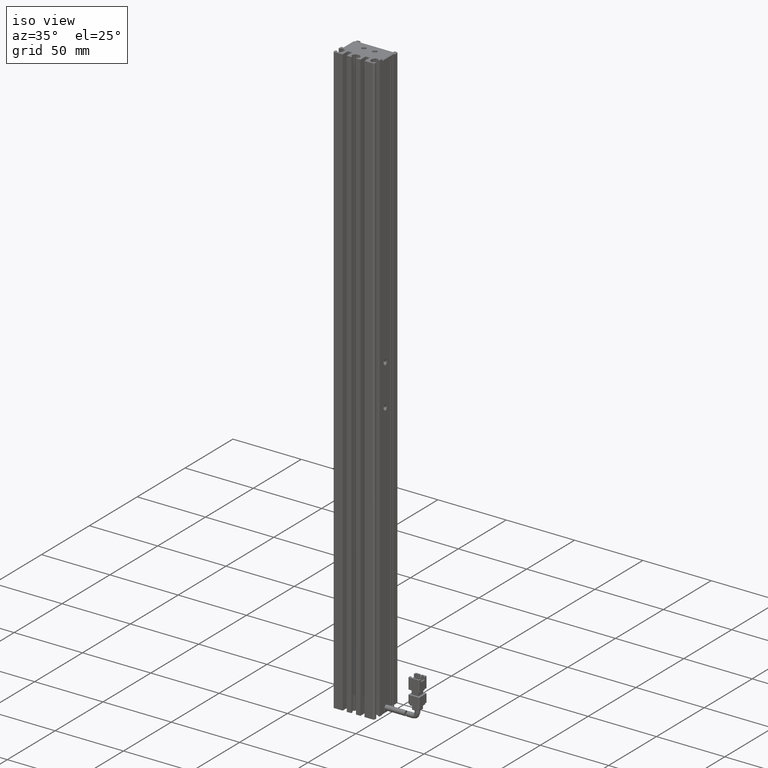
[diagram: clean part render]
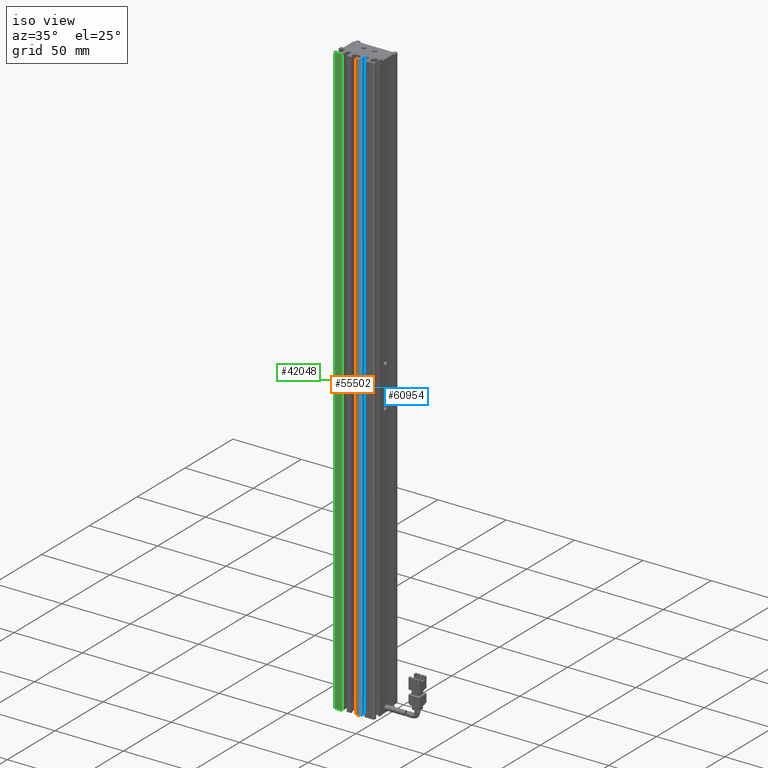
[diagram: same view with three faces highlighted in distinct colors, each labeled with its STEP entity id]
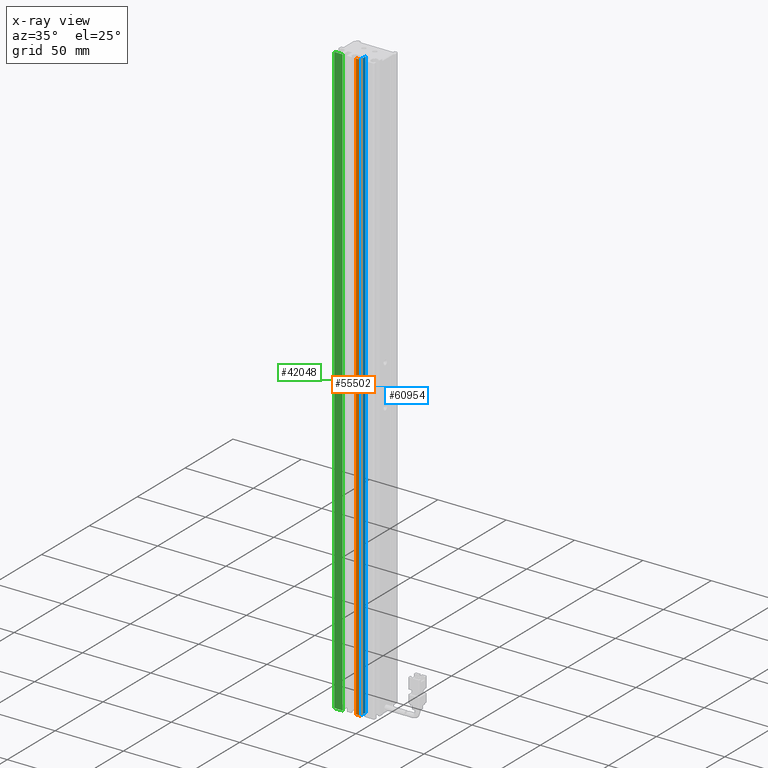
[diagram: x-ray of the same camera — body ghosted, the three highlighted faces saturated]
A machine part, iso view with three faces highlighted in distinct colors.
The next image is the same camera in x-ray (body ghosted, the three faces saturated) — at least one of them is partly hidden behind the body in this view.
Their STEP definitions:

[orange] entity #55502 — the highlighted planar face has unit normal (0, 1, 0).
#2339 = VECTOR ( 'NONE', #44096, 1000.000000000000000 ) ;
#7346 = EDGE_CURVE ( 'NONE', #8609, #74160, #70196, .T. ) ;
#7618 = EDGE_CURVE ( 'NONE', #79358, #8609, #66281, .T. ) ;
#8348 = FACE_OUTER_BOUND ( 'NONE', #15001, .T. ) ;
#8609 = VERTEX_POINT ( 'NONE', #57653 ) ;
#12060 = ORIENTED_EDGE ( 'NONE', *, *, #7618, .T. ) ;
#15001 = EDGE_LOOP ( 'NONE', ( #41420, #79061, #24827, #12060 ) ) ;
#15429 = VECTOR ( 'NONE', #45337, 1000.000000000000000 ) ;
#21301 = VECTOR ( 'NONE', #59780, 1000.000000000000000 ) ;
#23430 = CARTESIAN_POINT ( 'NONE',  ( 40.92537974683542500, 10.69594479660386800, 102.0000000000000000 ) ) ;
#24827 = ORIENTED_EDGE ( 'NONE', *, *, #52399, .F. ) ;
#27993 = CARTESIAN_POINT ( 'NONE',  ( 42.67537974683542500, 10.69594479660386800, 102.0000000000000000 ) ) ;
#29655 = DIRECTION ( 'NONE',  ( 0.0000000000000000000, -0.0000000000000000000, 1.000000000000000000 ) ) ;
#41420 = ORIENTED_EDGE ( 'NONE', *, *, #7346, .T. ) ;
#42607 = EDGE_CURVE ( 'NONE', #47726, #74160, #51841, .T. ) ;
#44096 = DIRECTION ( 'NONE',  ( 0.0000000000000000000, -0.0000000000000000000, 1.000000000000000000 ) ) ;
#45337 = DIRECTION ( 'NONE',  ( 1.000000000000000000, 0.0000000000000000000, 0.0000000000000000000 ) ) ;
#45889 = CARTESIAN_POINT ( 'NONE',  ( 45.92537974683541800, 10.69594479660386800, 102.0000000000000000 ) ) ;
#46122 = CARTESIAN_POINT ( 'NONE',  ( 42.67537974683542500, 10.69594479660386800, -332.0000000000000000 ) ) ;
#47726 = VERTEX_POINT ( 'NONE', #27993 ) ;
#51439 = LINE ( 'NONE', #68417, #2339 ) ;
#51841 = LINE ( 'NONE', #56509, #68146 ) ;
#52399 = EDGE_CURVE ( 'NONE', #79358, #47726, #51439, .T. ) ;
#52885 = AXIS2_PLACEMENT_3D ( 'NONE', #23430, #66288, #29655 ) ;
#55502 = ADVANCED_FACE ( 'NONE', ( #8348 ), #72202, .F. ) ;
#56509 = CARTESIAN_POINT ( 'NONE',  ( 40.92537974683542500, 10.69594479660386800, 102.0000000000000000 ) ) ;
#57653 = CARTESIAN_POINT ( 'NONE',  ( 45.92537974683541800, 10.69594479660386800, -332.0000000000000000 ) ) ;
#59780 = DIRECTION ( 'NONE',  ( 0.0000000000000000000, 0.0000000000000000000, 1.000000000000000000 ) ) ;
#62662 = DIRECTION ( 'NONE',  ( 1.000000000000000000, 0.0000000000000000000, 0.0000000000000000000 ) ) ;
#65950 = CARTESIAN_POINT ( 'NONE',  ( 45.92537974683541800, 10.69594479660386800, 102.0000000000000000 ) ) ;
#66281 = LINE ( 'NONE', #75803, #15429 ) ;
#66288 = DIRECTION ( 'NONE',  ( 0.0000000000000000000, 1.000000000000000000, 0.0000000000000000000 ) ) ;
#68146 = VECTOR ( 'NONE', #62662, 1000.000000000000000 ) ;
#68417 = CARTESIAN_POINT ( 'NONE',  ( 42.67537974683542500, 10.69594479660386800, 102.0000000000000000 ) ) ;
#70196 = LINE ( 'NONE', #65950, #21301 ) ;
#72202 = PLANE ( 'NONE',  #52885 ) ;
#74160 = VERTEX_POINT ( 'NONE', #45889 ) ;
#75803 = CARTESIAN_POINT ( 'NONE',  ( 40.92537974683542500, 10.69594479660386800, -332.0000000000000000 ) ) ;
#79061 = ORIENTED_EDGE ( 'NONE', *, *, #42607, .F. ) ;
#79358 = VERTEX_POINT ( 'NONE', #46122 ) ;

[blue] entity #60954 — the highlighted planar face has unit normal (-1, -0, 0).
#5542 = CARTESIAN_POINT ( 'NONE',  ( 45.92537974683541800, 16.19594479660386800, -332.0000000000000000 ) ) ;
#7346 = EDGE_CURVE ( 'NONE', #8609, #74160, #70196, .T. ) ;
#8609 = VERTEX_POINT ( 'NONE', #57653 ) ;
#11059 = EDGE_CURVE ( 'NONE', #72838, #20313, #67749, .T. ) ;
#18681 = DIRECTION ( 'NONE',  ( -1.000000000000000000, -3.154042683594196600E-016, 0.0000000000000000000 ) ) ;
#19034 = ORIENTED_EDGE ( 'NONE', *, *, #11059, .F. ) ;
#20313 = VERTEX_POINT ( 'NONE', #5542 ) ;
#20345 = ORIENTED_EDGE ( 'NONE', *, *, #30634, .F. ) ;
#20387 = ORIENTED_EDGE ( 'NONE', *, *, #50400, .T. ) ;
#21301 = VECTOR ( 'NONE', #59780, 1000.000000000000000 ) ;
#22826 = CARTESIAN_POINT ( 'NONE',  ( 45.92537974683541800, 7.083797468354437600, 102.0000000000000000 ) ) ;
#23285 = CARTESIAN_POINT ( 'NONE',  ( 45.92537974683541800, 16.19594479660386800, 102.0000000000000000 ) ) ;
#28142 = CARTESIAN_POINT ( 'NONE',  ( 45.92537974683541800, 16.19594479660386800, 102.0000000000000000 ) ) ;
#30634 = EDGE_CURVE ( 'NONE', #74160, #72838, #30978, .T. ) ;
#30978 = LINE ( 'NONE', #22826, #47233 ) ;
#33880 = LINE ( 'NONE', #77948, #66380 ) ;
#34324 = DIRECTION ( 'NONE',  ( 0.0000000000000000000, -0.0000000000000000000, -1.000000000000000000 ) ) ;
#36068 = AXIS2_PLACEMENT_3D ( 'NONE', #55374, #18681, #61557 ) ;
#41358 = DIRECTION ( 'NONE',  ( 0.0000000000000000000, 1.000000000000000000, -0.0000000000000000000 ) ) ;
#45889 = CARTESIAN_POINT ( 'NONE',  ( 45.92537974683541800, 10.69594479660386800, 102.0000000000000000 ) ) ;
#47233 = VECTOR ( 'NONE', #59512, 1000.000000000000000 ) ;
#50400 = EDGE_CURVE ( 'NONE', #8609, #20313, #33880, .T. ) ;
#51448 = VECTOR ( 'NONE', #34324, 1000.000000000000000 ) ;
#55374 = CARTESIAN_POINT ( 'NONE',  ( 45.92537974683541800, 7.083797468354439400, 102.0000000000000000 ) ) ;
#57653 = CARTESIAN_POINT ( 'NONE',  ( 45.92537974683541800, 10.69594479660386800, -332.0000000000000000 ) ) ;
#59512 = DIRECTION ( 'NONE',  ( 0.0000000000000000000, 1.000000000000000000, -0.0000000000000000000 ) ) ;
#59780 = DIRECTION ( 'NONE',  ( 0.0000000000000000000, 0.0000000000000000000, 1.000000000000000000 ) ) ;
#60954 = ADVANCED_FACE ( 'NONE', ( #62516 ), #61301, .F. ) ;
#61301 = PLANE ( 'NONE',  #36068 ) ;
#61557 = DIRECTION ( 'NONE',  ( 3.154042683594196600E-016, -1.000000000000000000, 0.0000000000000000000 ) ) ;
#62016 = ORIENTED_EDGE ( 'NONE', *, *, #7346, .F. ) ;
#62516 = FACE_OUTER_BOUND ( 'NONE', #70706, .T. ) ;
#65950 = CARTESIAN_POINT ( 'NONE',  ( 45.92537974683541800, 10.69594479660386800, 102.0000000000000000 ) ) ;
#66380 = VECTOR ( 'NONE', #41358, 1000.000000000000000 ) ;
#67749 = LINE ( 'NONE', #28142, #51448 ) ;
#70196 = LINE ( 'NONE', #65950, #21301 ) ;
#70706 = EDGE_LOOP ( 'NONE', ( #19034, #20345, #62016, #20387 ) ) ;
#72838 = VERTEX_POINT ( 'NONE', #23285 ) ;
#74160 = VERTEX_POINT ( 'NONE', #45889 ) ;
#77948 = CARTESIAN_POINT ( 'NONE',  ( 45.92537974683541800, 7.083797468354437600, -332.0000000000000000 ) ) ;

[green] entity #42048 — the highlighted planar face has unit normal (0, -1, 0).
#2887 = FACE_OUTER_BOUND ( 'NONE', #12025, .T. ) ;
#3225 = LINE ( 'NONE', #55368, #34174 ) ;
#3398 = ORIENTED_EDGE ( 'NONE', *, *, #50461, .T. ) ;
#6403 = VECTOR ( 'NONE', #30355, 1000.000000000000000 ) ;
#10655 = EDGE_CURVE ( 'NONE', #40056, #59723, #61226, .T. ) ;
#11650 = EDGE_CURVE ( 'NONE', #64508, #59723, #3225, .T. ) ;
#12025 = EDGE_LOOP ( 'NONE', ( #70436, #3398, #72302, #41773 ) ) ;
#13542 = CARTESIAN_POINT ( 'NONE',  ( 32.92537974683543200, 10.69594479660386800, -332.0000000000000000 ) ) ;
#14160 = AXIS2_PLACEMENT_3D ( 'NONE', #62221, #25590, #68398 ) ;
#14413 = LINE ( 'NONE', #52247, #61440 ) ;
#16891 = CARTESIAN_POINT ( 'NONE',  ( 26.92537974683542100, 10.69594479660386800, 102.0000000000000000 ) ) ;
#17469 = LINE ( 'NONE', #16891, #48177 ) ;
#18412 = DIRECTION ( 'NONE',  ( 0.0000000000000000000, 0.0000000000000000000, 1.000000000000000000 ) ) ;
#21724 = DIRECTION ( 'NONE',  ( 1.000000000000000000, 0.0000000000000000000, 0.0000000000000000000 ) ) ;
#24150 = CARTESIAN_POINT ( 'NONE',  ( 40.92537974683542500, 10.69594479660386800, 102.0000000000000000 ) ) ;
#25590 = DIRECTION ( 'NONE',  ( 0.0000000000000000000, -1.000000000000000000, 0.0000000000000000000 ) ) ;
#30355 = DIRECTION ( 'NONE',  ( 1.000000000000000000, 0.0000000000000000000, 0.0000000000000000000 ) ) ;
#34174 = VECTOR ( 'NONE', #18412, 1000.000000000000000 ) ;
#40056 = VERTEX_POINT ( 'NONE', #43411 ) ;
#41773 = ORIENTED_EDGE ( 'NONE', *, *, #11650, .T. ) ;
#42048 = ADVANCED_FACE ( 'NONE', ( #2887 ), #61971, .T. ) ;
#43411 = CARTESIAN_POINT ( 'NONE',  ( 26.92537974683542100, 10.69594479660386800, 102.0000000000000000 ) ) ;
#46580 = EDGE_CURVE ( 'NONE', #79444, #64508, #14413, .T. ) ;
#48177 = VECTOR ( 'NONE', #59766, 1000.000000000000000 ) ;
#50461 = EDGE_CURVE ( 'NONE', #40056, #79444, #17469, .T. ) ;
#52247 = CARTESIAN_POINT ( 'NONE',  ( 40.92537974683542500, 10.69594479660386800, -332.0000000000000000 ) ) ;
#53672 = CARTESIAN_POINT ( 'NONE',  ( 32.92537974683543200, 10.69594479660386800, 102.0000000000000000 ) ) ;
#55368 = CARTESIAN_POINT ( 'NONE',  ( 32.92537974683543200, 10.69594479660386800, 102.0000000000000000 ) ) ;
#59723 = VERTEX_POINT ( 'NONE', #53672 ) ;
#59766 = DIRECTION ( 'NONE',  ( 0.0000000000000000000, -0.0000000000000000000, -1.000000000000000000 ) ) ;
#61226 = LINE ( 'NONE', #24150, #6403 ) ;
#61440 = VECTOR ( 'NONE', #21724, 1000.000000000000000 ) ;
#61971 = PLANE ( 'NONE',  #14160 ) ;
#62221 = CARTESIAN_POINT ( 'NONE',  ( 40.92537974683542500, 10.69594479660386800, 102.0000000000000000 ) ) ;
#64508 = VERTEX_POINT ( 'NONE', #13542 ) ;
#65336 = CARTESIAN_POINT ( 'NONE',  ( 26.92537974683542100, 10.69594479660386800, -332.0000000000000000 ) ) ;
#68398 = DIRECTION ( 'NONE',  ( 0.0000000000000000000, -0.0000000000000000000, -1.000000000000000000 ) ) ;
#70436 = ORIENTED_EDGE ( 'NONE', *, *, #10655, .F. ) ;
#72302 = ORIENTED_EDGE ( 'NONE', *, *, #46580, .T. ) ;
#79444 = VERTEX_POINT ( 'NONE', #65336 ) ;